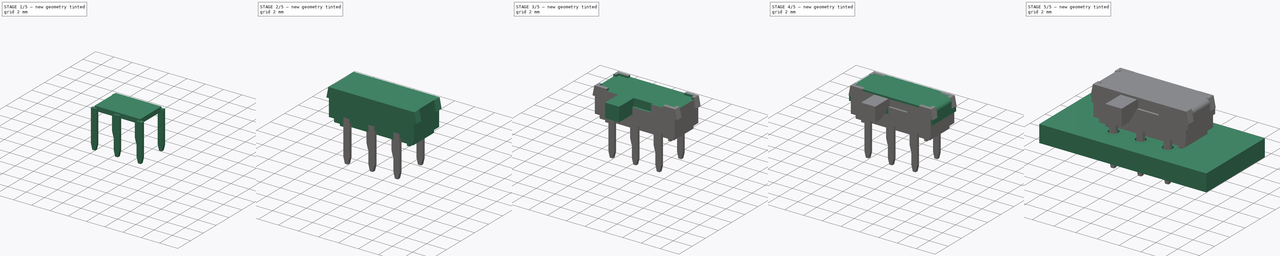
[diagram: build sequence overview — one tinted view per stage of 5, left to right]
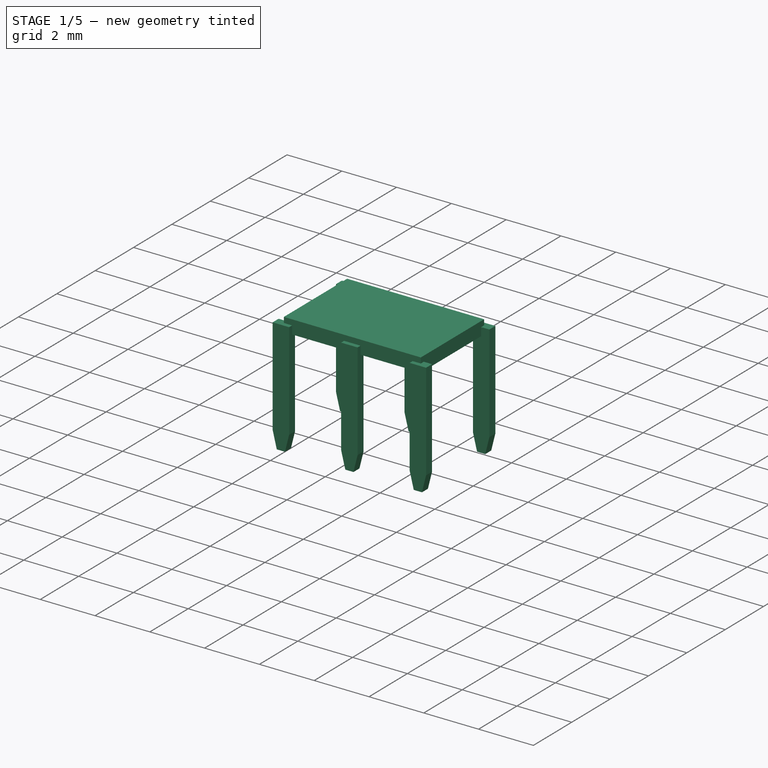
[diagram: stage 1 of 5 — iso view after this stage's code; geometry added in this stage tinted green]
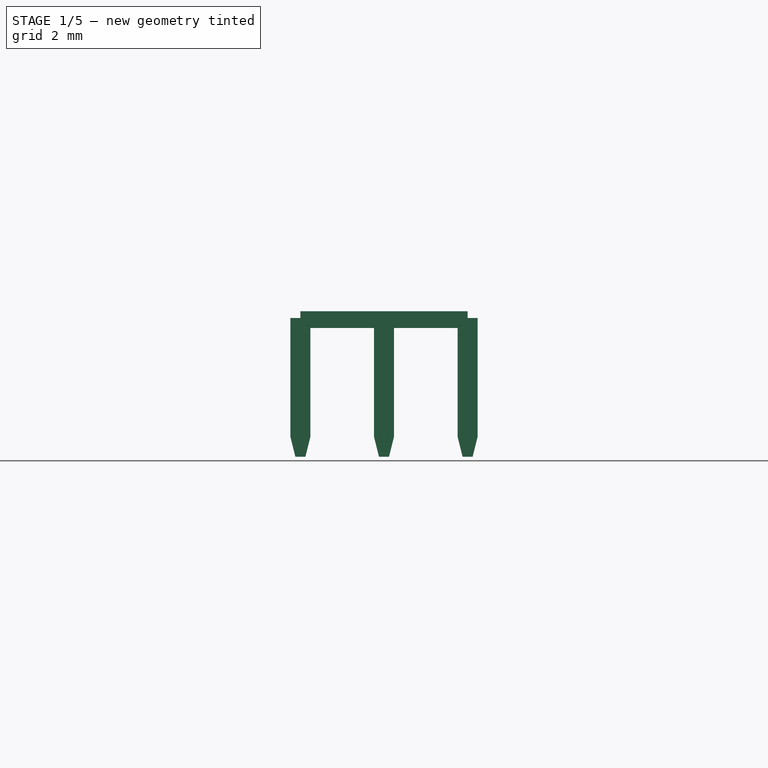
[diagram: stage 1 of 5 — front view after this stage's code; geometry added in this stage tinted green]
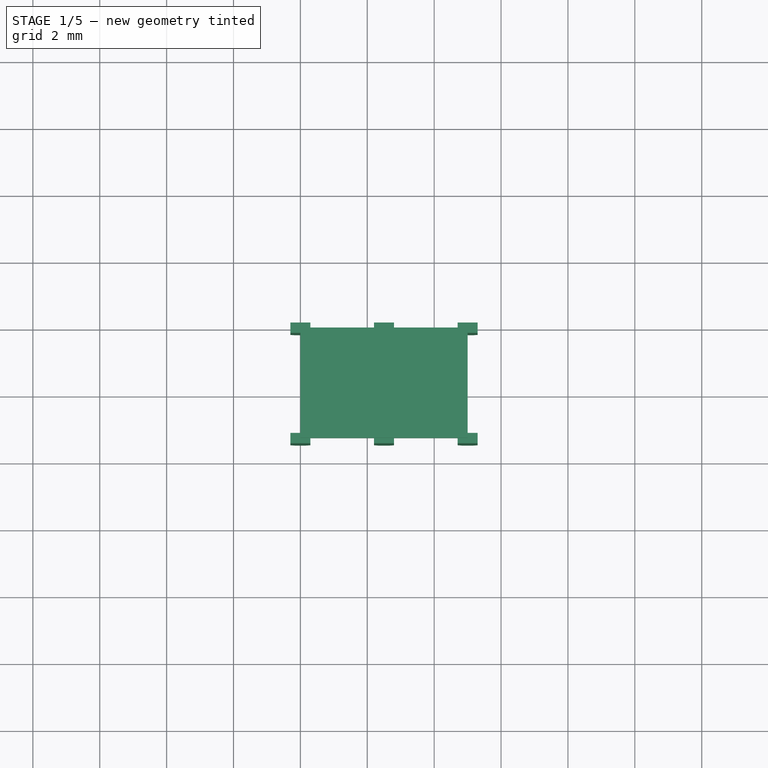
[diagram: stage 1 of 5 — top view after this stage's code; geometry added in this stage tinted green]
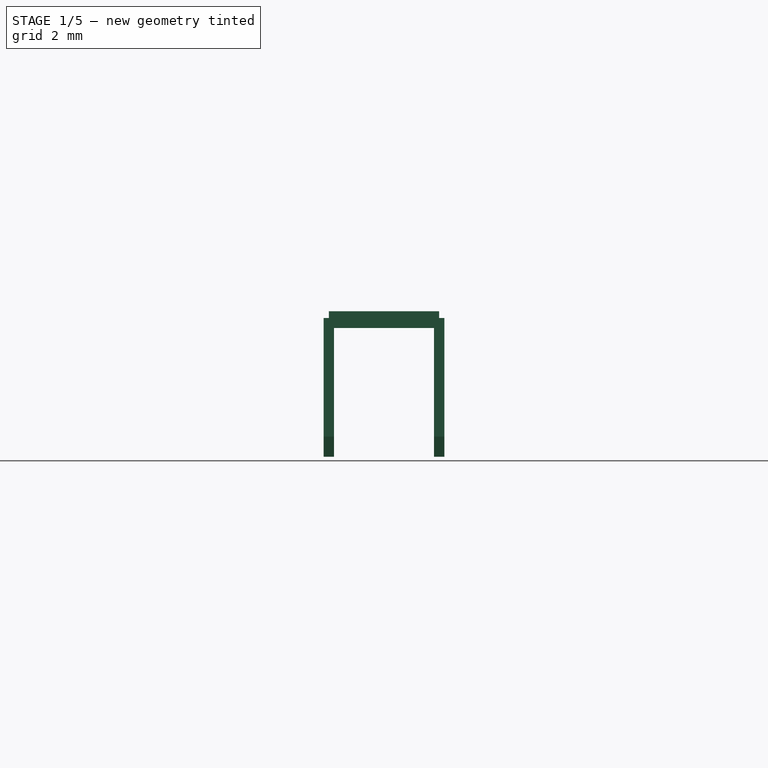
[diagram: stage 1 of 5 — right view after this stage's code; geometry added in this stage tinted green]
FCSTD DOCUMENT  (FreeCAD 0.17R10432 (Git))
Label: SW_CuK_JS202011AQN_DPDT_Angled
License: All rights reserved
LicenseURL: http://en.wikipedia.org/wiki/All_rights_reserved
objects: Sketcher::SketchObject×12, PartDesign::Pad×8, Part::FeaturePython×5, PartDesign::Pocket×4, PartDesign::Plane×3, PartDesign::Body×3, PartDesign::LinearPattern×2, App::DocumentObjectGroup×1, PartDesign::MultiTransform×1, Part::MultiFuse×1
note: 51 computed .brp shape members not serialized (recipe doc carries the construction recipe); baked Part::Feature solids carry a one-line shape summary decoded from their .brp

FEATURE [PartDesign::Body] Pocket001Body  label="MainBody"
  BaseFeature = -> DatumPlane
  Group = -> [Sketch,Pad,Sketch001,Pad001,Sketch002,Pad002,Sketch003,Pocket,Sketch004,Pocket001,Sketch014,Pocket002,Sketch015,Pad008,Sketch016,Pocket003]
  Origin = -> Pocket001BodyOrigin
  Tip = -> Pocket003
FEATURE [PartDesign::Plane] DatumPlane002
  MapMode = 5
  Placement = pos=(0,0,0.85) rot=(0,0,1;0rad)
  Support = -> [XY_Plane]
  superPlacement = pos=(0,0,0.85) rot=(0,0,1;0rad)
FEATURE [Sketcher::SketchObject] Sketch017
  MapMode = 5
  Placement = pos=(0,0,0.85) rot=(0,0,1;0rad)
  Support = -> [DatumPlane002]
  sketch-geometry (4):
    g0: LineSegment StartX=0 StartY=0 StartZ=0 EndX=5 EndY=0 EndZ=0
    g1: LineSegment StartX=5 StartY=0 StartZ=0 EndX=5 EndY=-3.3 EndZ=0
    g2: LineSegment StartX=5 StartY=-3.3 StartZ=0 EndX=0 EndY=-3.3 EndZ=0
    g3: LineSegment StartX=0 StartY=-3.3 StartZ=0 EndX=0 EndY=0 EndZ=0
  constraints (11):
    c: Coincident(g0,g1)
    c: Coincident(g1,g2)
    c: Coincident(g2,g3)
    c: Coincident(g3,g0)
    c: Horizontal(g0)
    c: Horizontal(g2)
    c: Vertical(g1)
    c: Vertical(g3)
    c: Coincident(g0,g-1)
    c: DistanceY(g3,g3) = 3.3
    c: DistanceX(g0,g0) = 5
FEATURE [PartDesign::Pad] Pad009
  Length = 0.5
  Length2 = 100
  Placement = pos=(0,0,0.85) rot=(0,0,1;0rad)
  Profile = -> Sketch017
  Type = 0
FEATURE [Sketcher::SketchObject] Sketch018
  MapMode = 5
  Placement = pos=(0,0,0.85) rot=(0,0.707107,0.707107;3.14159rad)
  Support = -> [Pad009]
  sketch-geometry (6):
    g0: LineSegment StartX=-0.3 StartY=0.3 StartZ=0 EndX=-0.3 EndY=-3.25 EndZ=0
    g1: LineSegment StartX=-0.3 StartY=-3.25 StartZ=0 EndX=-0.15 EndY=-3.85 EndZ=0
    g2: LineSegment StartX=-0.15 StartY=-3.85 StartZ=0 EndX=0.15 EndY=-3.85 EndZ=0
    g3: LineSegment StartX=0.15 StartY=-3.85 StartZ=0 EndX=0.3 EndY=-3.25 EndZ=0
    g4: LineSegment StartX=0.3 StartY=-3.25 StartZ=0 EndX=0.3 EndY=0.3 EndZ=0
    g5: LineSegment StartX=0.3 StartY=0.3 StartZ=0 EndX=-0.3 EndY=0.3 EndZ=0
  constraints (17):
    c: Vertical(g0)
    c: Coincident(g0,g1)
    c: Coincident(g1,g2)
    c: Horizontal(g2)
    c: Coincident(g2,g3)
    c: Coincident(g3,g4)
    c: Vertical(g4)
    c: Coincident(g4,g5)
    c: Coincident(g5,g0)
    c: Horizontal(g5)
    c: Symmetric(g0,g3,g-2)
    c: Symmetric(g2,g1,g-2)
    c: DistanceY(g1,g-1) = 3.85
    c: DistanceX(g0,g3) = 0.6
    c: DistanceY(g3,g3) = 0.6
    c: DistanceX(g3,g3) = 0.15
    c: DistanceY(g-1,g0) = 0.3
FEATURE [PartDesign::Pad] Pad010
  BaseFeature = -> Pad009
  Length = 0.31
  Length2 = 100
  Midplane = true
  Placement = pos=(0,0,0.85) rot=(0,0,1;0rad)
  Profile = -> Sketch018
  Type = 0
FEATURE [PartDesign::LinearPattern] LinearPattern
  BaseFeature = -> Pad010
  Direction = -> Sketch018 [H_Axis]
  Length = 5
  Occurrences = 3
  Placement = pos=(0,0,0.85) rot=(0,0,1;0rad)
  Reversed = true
FEATURE [PartDesign::LinearPattern] LinearPattern001
  Direction = -> Sketch018 [N_Axis]
  Length = 3.3
  Occurrences = 2
  Placement = pos=(0,0,0.85) rot=(0,0,1;0rad)
  Reversed = true
FEATURE [PartDesign::MultiTransform] MultiTransform
  BaseFeature = -> Pad010
  Originals = -> [Pad010]
  Placement = pos=(0,0,0.85) rot=(0,0,1;0rad)
  Transformations = -> [LinearPattern,LinearPattern001]
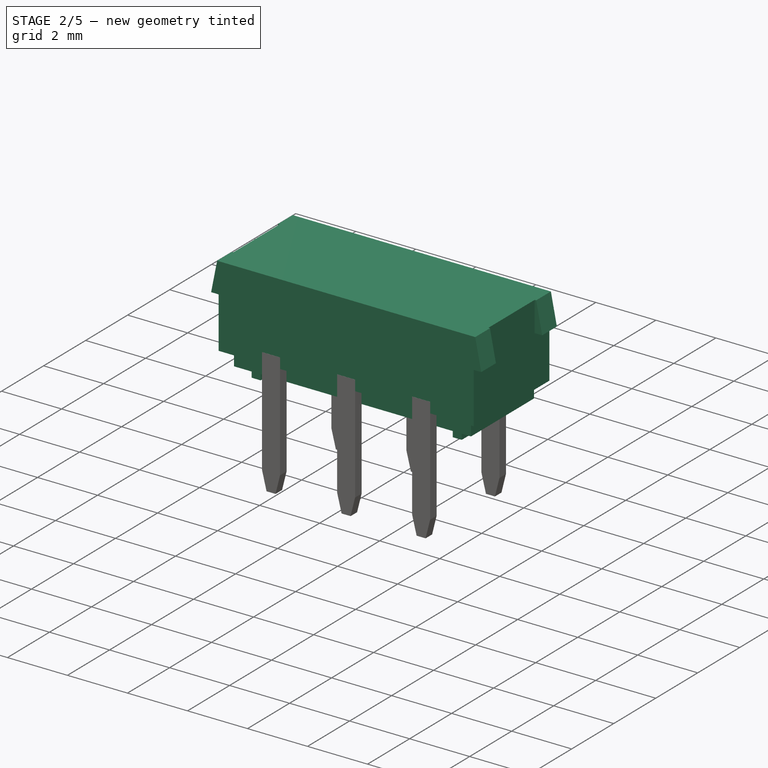
[diagram: stage 2 of 5 — iso view after this stage's code; geometry added in this stage tinted green]
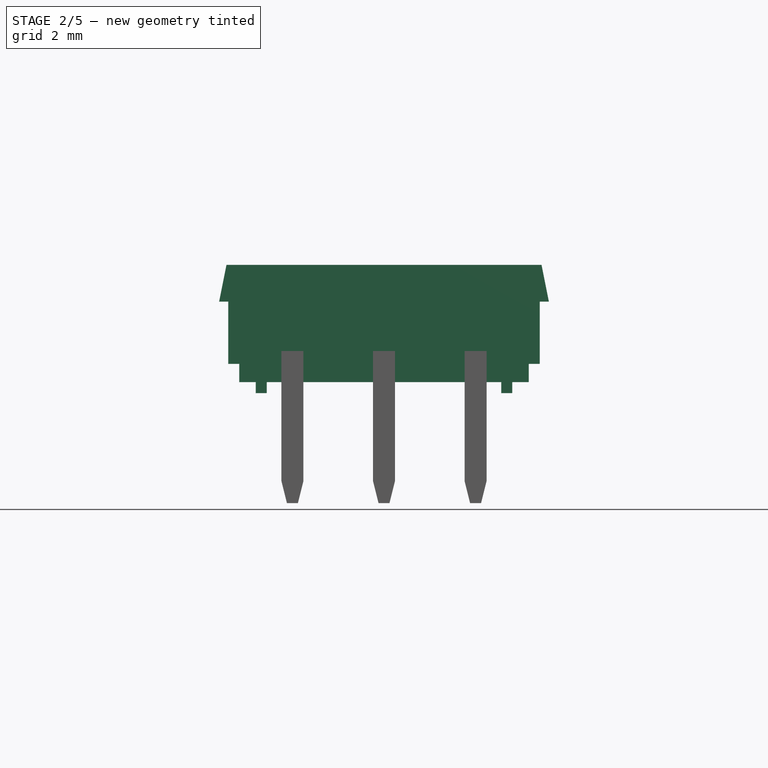
[diagram: stage 2 of 5 — front view after this stage's code; geometry added in this stage tinted green]
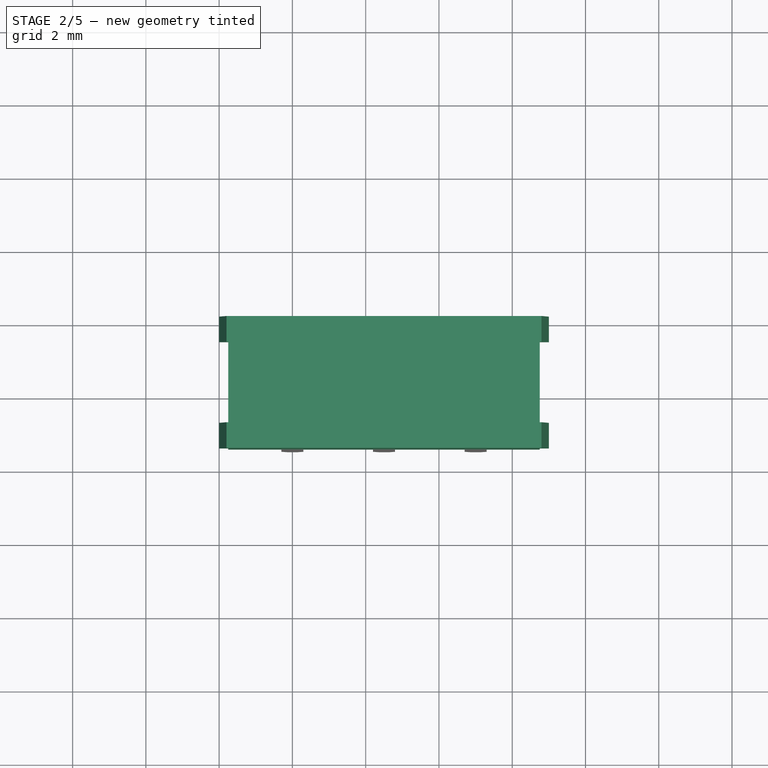
[diagram: stage 2 of 5 — top view after this stage's code; geometry added in this stage tinted green]
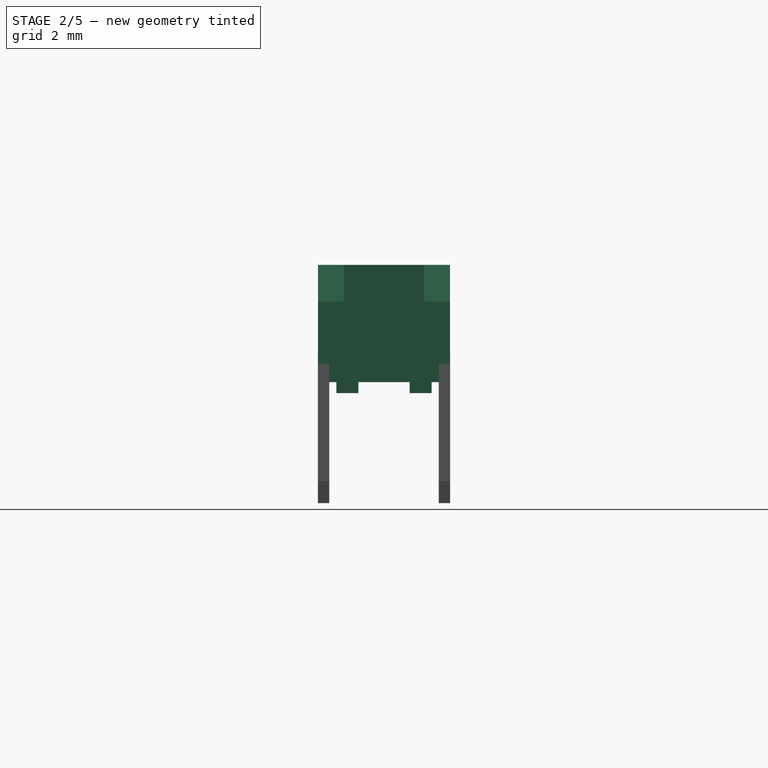
[diagram: stage 2 of 5 — right view after this stage's code; geometry added in this stage tinted green]
FEATURE [PartDesign::Plane] DatumPlane
  MapMode = 5
  Placement = pos=(0,0.15,0) rot=(1,0,0;1.5708rad)
  superPlacement = pos=(0,0,-0.15) rot=(0,0,1;0rad)
  expr: superPlacement.Base.z = -0.29999999999999999 / 2
FEATURE [Sketcher::SketchObject] Sketch
  MapMode = 5
  Placement = pos=(0,0.15,0) rot=(1,0,0;1.5708rad)
  Support = -> [DatumPlane]
  sketch-geometry (9):
    g0: LineSegment StartX=-1.75 StartY=0.8 StartZ=0 EndX=-1.75 EndY=2.5 EndZ=0
    g1: LineSegment StartX=-1.75 StartY=2.5 StartZ=0 EndX=-2 EndY=2.5 EndZ=0
    g2: LineSegment StartX=-2 StartY=2.5 StartZ=0 EndX=-1.8 EndY=3.5 EndZ=0
    g3: LineSegment StartX=-1.8 StartY=3.5 StartZ=0 EndX=6.8 EndY=3.5 EndZ=0
    g4: LineSegment StartX=6.8 StartY=3.5 StartZ=0 EndX=7 EndY=2.5 EndZ=0
    g5: LineSegment StartX=7 StartY=2.5 StartZ=0 EndX=6.75 EndY=2.5 EndZ=0
    g6: LineSegment StartX=6.75 StartY=2.5 StartZ=0 EndX=6.75 EndY=0.8 EndZ=0
    g7: LineSegment StartX=6.75 StartY=0.8 StartZ=0 EndX=-1.75 EndY=0.8 EndZ=0
    g8: LineSegment [constr] StartX=2.5 StartY=3.5 StartZ=0 EndX=2.5 EndY=0 EndZ=0
  constraints (26):
    c: Vertical(g0)
    c: Coincident(g0,g1)
    c: Horizontal(g1)
    c: Coincident(g1,g2)
    c: Coincident(g2,g3)
    c: Horizontal(g3)
    c: Coincident(g3,g4)
    c: Coincident(g4,g5)
    c: Horizontal(g5)
    c: Coincident(g5,g6)
    c: Vertical(g6)
    c: Coincident(g7,g0)
    c: Horizontal(g7)
    c: PointOnObject(g8,g3)
    c: Symmetric(g3,g2,g8)
    c: Symmetric(g4,g1,g8)
    c: Symmetric(g0,g6,g8)
    c: DistanceX(g-1,g8) = 2.5
    c: DistanceY(g4,g3) = 1
    c: DistanceX(g3,g4) = 0.2
    c: DistanceX(g1,g4) = 9
    c: DistanceX(g0,g6) = 8.5
    c: DistanceY(g-1,g2) = 3.5
    c: DistanceY(g-1,g0) = 0.8
    c: Coincident(g7,g6)
    c: PointOnObject(g8,g-1)
FEATURE [PartDesign::Pad] Pad
  BaseFeature = -> DatumPlane
  Length = 3.6
  Length2 = 100
  Placement = pos=(0,0.15,0) rot=(1,0,0;1.5708rad)
  Profile = -> Sketch
  Type = 0
  expr: Length = 3.2999999999999998 + 0.29999999999999999
FEATURE [Sketcher::SketchObject] Sketch001
  ExternalGeometry = -> [Pad]
  MapMode = 5
  Placement = pos=(0,0.15,0.8) rot=(1,0,0;3.14159rad)
  Support = -> [Pad]
  sketch-geometry (4):
    g0: LineSegment StartX=-1.45 StartY=3.3 StartZ=0 EndX=6.45 EndY=3.3 EndZ=0
    g1: LineSegment StartX=6.45 StartY=3.3 StartZ=0 EndX=6.45 EndY=0.3 EndZ=0
    g2: LineSegment StartX=6.45 StartY=0.3 StartZ=0 EndX=-1.45 EndY=0.3 EndZ=0
    g3: LineSegment StartX=-1.45 StartY=0.3 StartZ=0 EndX=-1.45 EndY=3.3 EndZ=0
  constraints (12):
    c: Coincident(g0,g1)
    c: Coincident(g1,g2)
    c: Coincident(g2,g3)
    c: Coincident(g3,g0)
    c: Horizontal(g0)
    c: Horizontal(g2)
    c: Vertical(g1)
    c: Vertical(g3)
    c: DistanceX(g-3,g0) = 0.3
    c: DistanceY(g0,g-3) = 0.3
    c: DistanceX(g1,g-4) = 0.3
    c: DistanceY(g-4,g1) = 0.3
FEATURE [PartDesign::Pad] Pad001
  BaseFeature = -> Pad
  Length = 0.5
  Length2 = 100
  Placement = pos=(0,0.15,0) rot=(1,0,0;1.5708rad)
  Profile = -> Sketch001
  Type = 0
FEATURE [Sketcher::SketchObject] Sketch002
  ExternalGeometry = -> [Pad001]
  MapMode = 5
  Placement = pos=(0,0.15,0.3) rot=(1,0,0;3.14159rad)
  Support = -> [Pad001]
  sketch-geometry (18):
    g0: LineSegment StartX=-1 StartY=3.1 StartZ=0 EndX=-0.7 EndY=3.1 EndZ=0
    g1: LineSegment StartX=-0.7 StartY=3.1 StartZ=0 EndX=-0.7 EndY=2.5 EndZ=0
    g2: LineSegment StartX=-0.7 StartY=2.5 StartZ=0 EndX=-1 EndY=2.5 EndZ=0
    g3: LineSegment StartX=-1 StartY=2.5 StartZ=0 EndX=-1 EndY=3.1 EndZ=0
    g4: LineSegment StartX=-1 StartY=1.1 StartZ=0 EndX=-0.7 EndY=1.1 EndZ=0
    g5: LineSegment StartX=-0.7 StartY=1.1 StartZ=0 EndX=-0.7 EndY=0.5 EndZ=0
    g6: LineSegment StartX=-0.7 StartY=0.5 StartZ=0 EndX=-1 EndY=0.5 EndZ=0
    g7: LineSegment StartX=-1 StartY=0.5 StartZ=0 EndX=-1 EndY=1.1 EndZ=0
    g8: LineSegment StartX=5.7 StartY=3.1 StartZ=0 EndX=6 EndY=3.1 EndZ=0
    g9: LineSegment StartX=6 StartY=3.1 StartZ=0 EndX=6 EndY=2.5 EndZ=0
    g10: LineSegment StartX=6 StartY=2.5 StartZ=0 EndX=5.7 EndY=2.5 EndZ=0
    g11: LineSegment StartX=5.7 StartY=2.5 StartZ=0 EndX=5.7 EndY=3.1 EndZ=0
    g12: LineSegment StartX=5.7 StartY=1.1 StartZ=0 EndX=6 EndY=1.1 EndZ=0
    g13: LineSegment StartX=6 StartY=1.1 StartZ=0 EndX=6 EndY=0.5 EndZ=0
    g14: LineSegment StartX=6 StartY=0.5 StartZ=0 EndX=5.7 EndY=0.5 EndZ=0
    g15: LineSegment StartX=5.7 StartY=0.5 StartZ=0 EndX=5.7 EndY=1.1 EndZ=0
    g16: LineSegment [constr] StartX=2.5 StartY=3.3 StartZ=0 EndX=2.5 EndY=0.3 EndZ=0
    g17: LineSegment [constr] StartX=-1 StartY=1.8 StartZ=0 EndX=6 EndY=1.8 EndZ=0
  constraints (50):
    c: Coincident(g0,g1)
    c: Coincident(g1,g2)
    c: Coincident(g2,g3)
    c: Coincident(g3,g0)
    c: Horizontal(g0)
    c: Horizontal(g2)
    c: Vertical(g1)
    c: Vertical(g3)
    c: Coincident(g4,g5)
    c: Coincident(g5,g6)
    c: Coincident(g6,g7)
    c: Coincident(g7,g4)
    c: Horizontal(g4)
    c: Horizontal(g6)
    c: Vertical(g5)
    c: Vertical(g7)
    c: Coincident(g8,g9)
    c: Coincident(g9,g10)
    c: Coincident(g10,g11)
    c: Coincident(g11,g8)
    c: Horizontal(g8)
    c: Horizontal(g10)
    c: Vertical(g9)
    c: Vertical(g11)
    c: Coincident(g12,g13)
    c: Coincident(g13,g14)
    c: Coincident(g14,g15)
    c: Coincident(g15,g12)
    c: Horizontal(g12)
    c: Horizontal(g14)
    c: Vertical(g13)
    c: Vertical(g15)
    c: PointOnObject(g16,g-3)
    c: PointOnObject(g16,g-4)
    c: Vertical(g16)
    c: Horizontal(g17)
    c: Symmetric(g0,g8,g16)
    c: Symmetric(g9,g2,g16)
    c: Symmetric(g12,g4,g16)
    c: Symmetric(g5,g14,g16)
    c: Symmetric(g14,g8,g17)
    c: Symmetric(g9,g12,g17)
    c: Symmetric(g-3,g-4,g17)
    c: PointOnObject(g17,g9)
    c: Symmetric(g-3,g-3,g16)
    c: PointOnObject(g17,g3)
    c: DistanceX(g-3,g0) = 0.2
    c: DistanceY(g0,g-3) = 0.2
    c: DistanceX(g0,g0) = 0.3
    c: DistanceY(g3,g3) = 0.6
FEATURE [PartDesign::Pad] Pad002
  BaseFeature = -> Pad001
  Length = 0.3
  Length2 = 100
  Placement = pos=(0,0.15,0) rot=(1,0,0;1.5708rad)
  Profile = -> Sketch002
  Type = 0
FEATURE [Sketcher::SketchObject] Sketch003
  ExternalGeometry = -> [Pad002]
  MapMode = 5
  Placement = pos=(0,0.15,3.5) rot=(0,0,1;3.14159rad)
  Support = -> [Pad002]
  sketch-geometry (9):
    g0: LineSegment StartX=1.75 StartY=2.9 StartZ=0 EndX=2 EndY=2.9 EndZ=0
    g1: LineSegment StartX=2 StartY=2.9 StartZ=0 EndX=2 EndY=0.7 EndZ=0
    g2: LineSegment StartX=2 StartY=0.7 StartZ=0 EndX=1.75 EndY=0.7 EndZ=0
    g3: LineSegment StartX=1.75 StartY=0.7 StartZ=0 EndX=1.75 EndY=2.9 EndZ=0
    g4: LineSegment StartX=-7 StartY=2.9 StartZ=0 EndX=-6.75 EndY=2.9 EndZ=0
    g5: LineSegment StartX=-6.75 StartY=2.9 StartZ=0 EndX=-6.75 EndY=0.7 EndZ=0
    g6: LineSegment StartX=-6.75 StartY=0.7 StartZ=0 EndX=-7 EndY=0.7 EndZ=0
    g7: LineSegment StartX=-7 StartY=0.7 StartZ=0 EndX=-7 EndY=2.9 EndZ=0
    g8: LineSegment [constr] StartX=-7 StartY=1.8 StartZ=0 EndX=2 EndY=1.8 EndZ=0
  constraints (26):
    c: Coincident(g0,g1)
    c: Coincident(g1,g2)
    c: Coincident(g2,g3)
    c: Coincident(g3,g0)
    c: Horizontal(g0)
    c: Horizontal(g2)
    c: Vertical(g1)
    c: Vertical(g3)
    c: PointOnObject(g1,g-8)
    c: Coincident(g4,g5)
    c: Coincident(g5,g6)
    c: Coincident(g6,g7)
    c: Coincident(g7,g4)
    c: Horizontal(g4)
    c: Horizontal(g6)
    c: Vertical(g5)
    c: Vertical(g7)
    c: PointOnObject(g4,g-7)
    c: PointOnObject(g8,g-7)
    c: PointOnObject(g8,g-8)
    c: Symmetric(g-8,g-8,g8)
    c: Symmetric(g1,g0,g8)
    c: DistanceY(g0,g-8) = 0.7
    c: Symmetric(g4,g5,g8)
    c: PointOnObject(g5,g-6)
    c: PointOnObject(g2,g-5)
FEATURE [PartDesign::Pocket] Pocket
  BaseFeature = -> Pad002
  Length = 5
  Placement = pos=(0,0.15,0) rot=(1,0,0;1.5708rad)
  Profile = -> Sketch003
  Type = 1
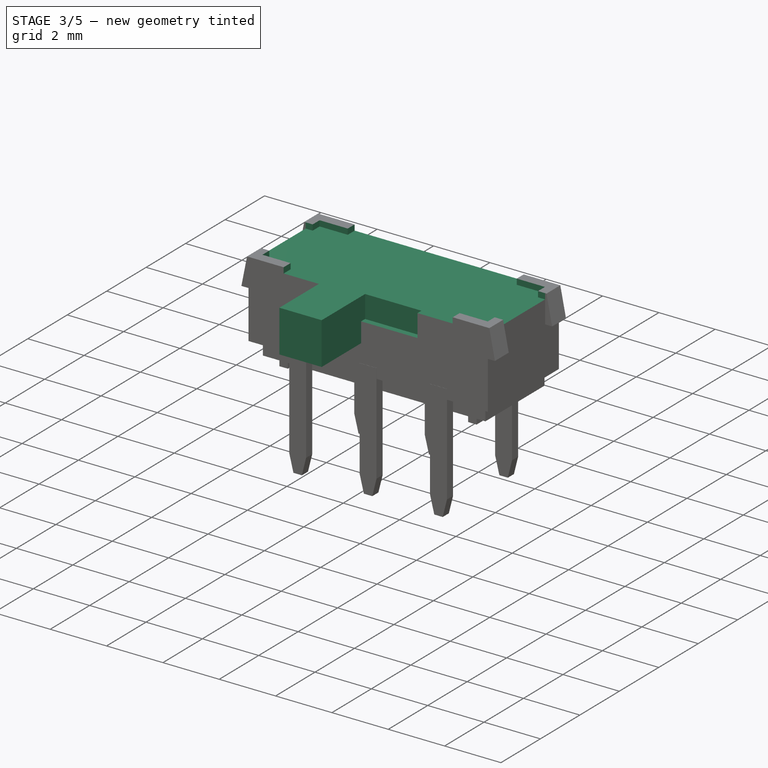
[diagram: stage 3 of 5 — iso view after this stage's code; geometry added in this stage tinted green]
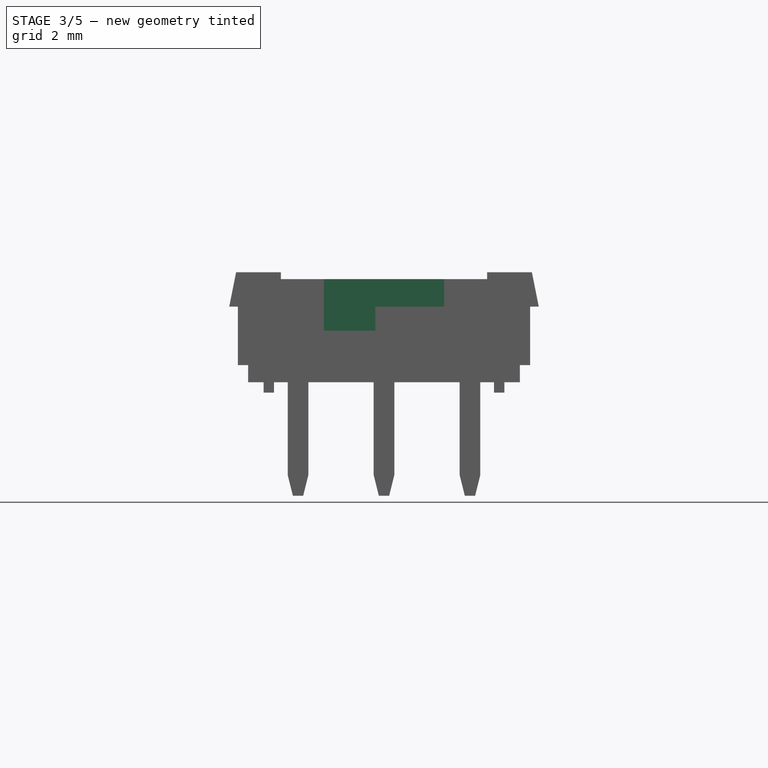
[diagram: stage 3 of 5 — front view after this stage's code; geometry added in this stage tinted green]
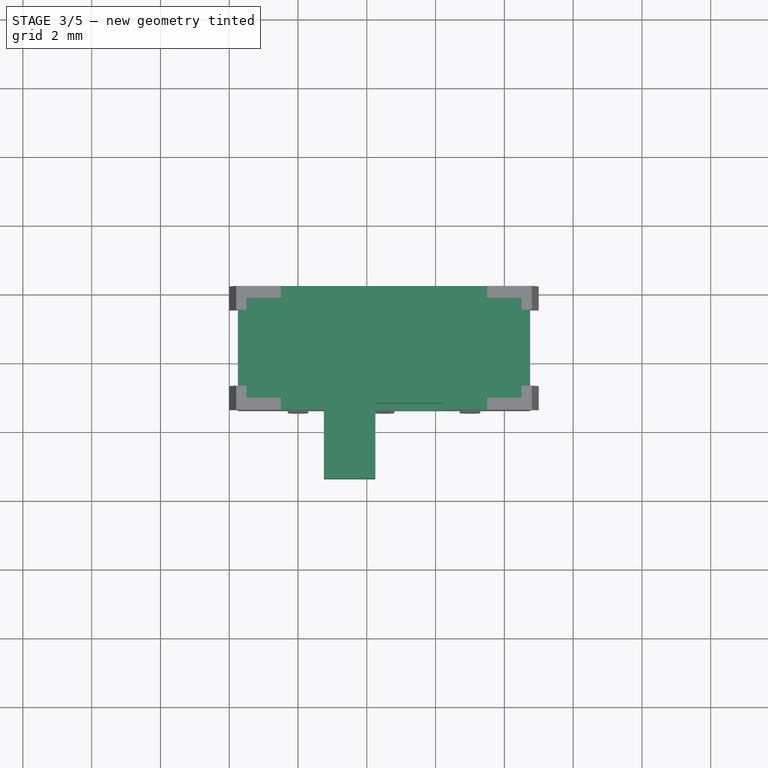
[diagram: stage 3 of 5 — top view after this stage's code; geometry added in this stage tinted green]
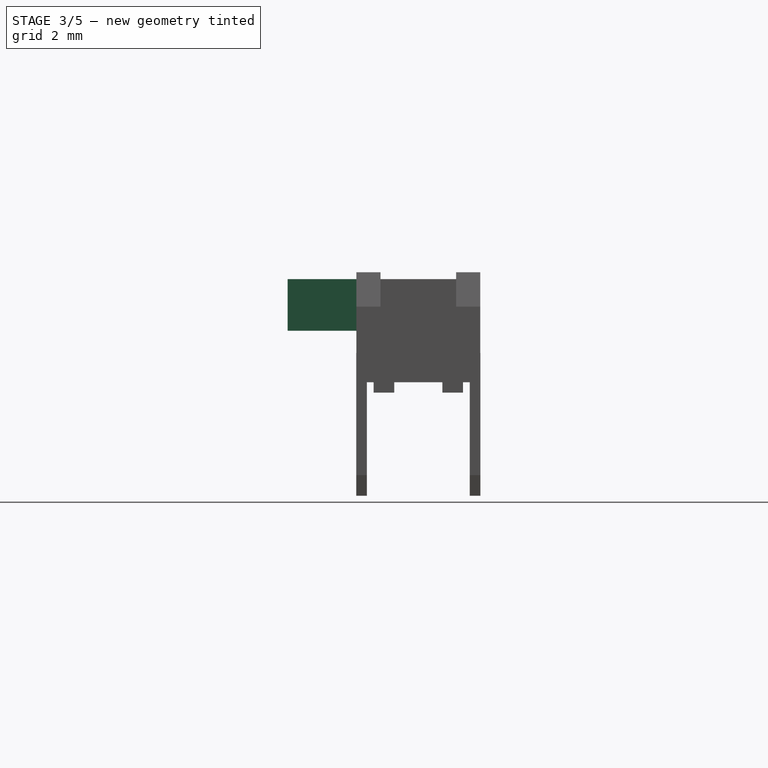
[diagram: stage 3 of 5 — right view after this stage's code; geometry added in this stage tinted green]
FEATURE [Sketcher::SketchObject] Sketch004
  ExternalGeometry = -> [Pocket]
  MapMode = 5
  Placement = pos=(0,0.15,3.5) rot=(0,0,1;3.14159rad)
  Support = -> [Pocket]
  sketch-geometry (22):
    g0: LineSegment [constr] StartX=-6.75 StartY=1.8 StartZ=0 EndX=1.75 EndY=1.8 EndZ=0
    g1: LineSegment [constr] StartX=-2.5 StartY=3.25 StartZ=0 EndX=-2.5 EndY=0.35 EndZ=0
    g2: LineSegment StartX=-5.5 StartY=3.6 StartZ=0 EndX=-5.5 EndY=3.25 EndZ=0
    g3: LineSegment StartX=-5.5 StartY=3.25 StartZ=0 EndX=-6.5 EndY=3.25 EndZ=0
    g4: LineSegment StartX=-6.5 StartY=0.35 StartZ=0 EndX=-5.5 EndY=0.35 EndZ=0
    g5: LineSegment StartX=-5.5 StartY=0.35 StartZ=0 EndX=-5.5 EndY=0 EndZ=0
    g6: LineSegment StartX=-5.5 StartY=0 StartZ=0 EndX=0.5 EndY=0 EndZ=0
    g7: LineSegment StartX=0.5 StartY=0 StartZ=0 EndX=0.5 EndY=0.35 EndZ=0
    g8: LineSegment StartX=0.5 StartY=0.35 StartZ=0 EndX=1.5 EndY=0.35 EndZ=0
    g9: LineSegment StartX=1.5 StartY=3.25 StartZ=0 EndX=0.5 EndY=3.25 EndZ=0
    g10: LineSegment StartX=0.5 StartY=3.25 StartZ=0 EndX=0.5 EndY=3.6 EndZ=0
    g11: LineSegment StartX=0.5 StartY=3.6 StartZ=0 EndX=-5.5 EndY=3.6 EndZ=0
    g12: LineSegment StartX=-6.5 StartY=3.25 StartZ=0 EndX=-6.5 EndY=2.9 EndZ=0
    g13: LineSegment StartX=-6.5 StartY=2.9 StartZ=0 EndX=-6.75 EndY=2.9 EndZ=0
    g14: LineSegment StartX=-6.75 StartY=2.9 StartZ=0 EndX=-6.75 EndY=0.7 EndZ=0
    g15: LineSegment StartX=-6.75 StartY=0.7 StartZ=0 EndX=-6.5 EndY=0.7 EndZ=0
    g16: LineSegment StartX=-6.5 StartY=0.7 StartZ=0 EndX=-6.5 EndY=0.35 EndZ=0
    g17: LineSegment StartX=1.5 StartY=3.25 StartZ=0 EndX=1.5 EndY=2.9 EndZ=0
    g18: LineSegment StartX=1.5 StartY=2.9 StartZ=0 EndX=1.75 EndY=2.9 EndZ=0
    g19: LineSegment StartX=1.75 StartY=2.9 StartZ=0 EndX=1.75 EndY=0.7 EndZ=0
    g20: LineSegment StartX=1.75 StartY=0.7 StartZ=0 EndX=1.5 EndY=0.7 EndZ=0
    g21: LineSegment StartX=1.5 StartY=0.7 StartZ=0 EndX=1.5 EndY=0.35 EndZ=0
  constraints (60):
    c: Horizontal(g0)
    c: Vertical(g2)
    c: Coincident(g2,g3)
    c: Horizontal(g3)
    c: Horizontal(g4)
    c: Coincident(g4,g5)
    c: Vertical(g5)
    c: Coincident(g5,g6)
    c: Coincident(g6,g7)
    c: Vertical(g7)
    c: Coincident(g7,g8)
    c: Horizontal(g8)
    c: Horizontal(g9)
    c: Coincident(g9,g10)
    c: Coincident(g10,g11)
    c: Vertical(g10)
    c: Symmetric(g2,g4,g0)
    c: Symmetric(g9,g2,g1)
    c: Symmetric(g4,g7,g1)
    c: DistanceY(g5,g5) = 0.35
    c: DistanceX(g4,g4) = 1
    c: Coincident(g11,g2)
    c: PointOnObject(g6,g-7)
    c: PointOnObject(g5,g-7)
    c: PointOnObject(g2,g-5)
    c: PointOnObject(g10,g-5)
    c: PointOnObject(g1,g9)
    c: PointOnObject(g1,g8)
    c: Symmetric(g-5,g-5,g1)
    c: Symmetric(g-7,g-5,g0)
    c: Coincident(g3,g12)
    c: Vertical(g12)
    c: Coincident(g12,g13)
    c: Coincident(g13,g-4)
    c: Coincident(g13,g14)
    c: Coincident(g14,g-4)
    c: Coincident(g14,g15)
    c: Horizontal(g15)
    c: Coincident(g15,g16)
    c: Coincident(g16,g4)
    c: Vertical(g16)
    c: Horizontal(g13)
    c: Coincident(g9,g17)
    c: Vertical(g17)
    c: Coincident(g17,g18)
    c: Coincident(g18,g-6)
    c: Horizontal(g18)
    c: Coincident(g18,g19)
    c: Coincident(g19,g-6)
    c: Coincident(g19,g20)
    c: Horizontal(g20)
    c: Coincident(g20,g21)
    c: Coincident(g21,g8)
    c: Vertical(g21)
    c: DistanceX(g13,g13) = 0.25
    c: Symmetric(g17,g12,g1)
    c: Symmetric(g20,g15,g1)
    c: PointOnObject(g12,g16)
    c: PointOnObject(g0,g-4)
    c: PointOnObject(g0,g-6)
FEATURE [PartDesign::Pocket] Pocket001
  BaseFeature = -> Pocket
  Length = 0.2
  Placement = pos=(0,0.15,0) rot=(1,0,0;1.5708rad)
  Profile = -> Sketch004
  Type = 0
FEATURE [App::DocumentObjectGroup] SW_CuK_JS202011AQN_DPDT_Angled_fp
  Group = -> [Filk_lines,TopPads,BotPads,THPs,newPCB]
FEATURE [PartDesign::Body] Pad005Body  label="TopMetal"
  BaseFeature = -> DatumPlane001
  Group = -> [Sketch007,Pad004,Sketch008,Pad005]
  Origin = -> Pad005BodyOrigin
  Tip = -> Pad005
FEATURE [Sketcher::SketchObject] Sketch014
  ExternalGeometry = -> [Pocket001]
  MapMode = 5
  Placement = pos=(0,-3.45,0) rot=(1,0,0;1.5708rad)
  Support = -> [Pocket001]
  expr: Constraints[14] = 2 + 1.5
  sketch-geometry (5):
    g0: LineSegment StartX=0.75 StartY=3.3 StartZ=0 EndX=4.25 EndY=3.3 EndZ=0
    g1: LineSegment StartX=4.25 StartY=3.3 StartZ=0 EndX=4.25 EndY=2.5 EndZ=0
    g2: LineSegment StartX=4.25 StartY=2.5 StartZ=0 EndX=0.75 EndY=2.5 EndZ=0
    g3: LineSegment StartX=0.75 StartY=2.5 StartZ=0 EndX=0.75 EndY=3.3 EndZ=0
    g4: LineSegment [constr] StartX=2.5 StartY=3.3 StartZ=0 EndX=2.5 EndY=2.5 EndZ=0
  constraints (15):
    c: Coincident(g0,g1)
    c: Coincident(g1,g2)
    c: Coincident(g2,g3)
    c: Coincident(g3,g0)
    c: Horizontal(g0)
    c: Horizontal(g2)
    c: Vertical(g1)
    c: Vertical(g3)
    c: PointOnObject(g0,g-3)
    c: PointOnObject(g4,g-3)
    c: PointOnObject(g4,g2)
    c: Symmetric(g-5,g-4,g4)
    c: Symmetric(g1,g2,g4)
    c: PointOnObject(g-4,g2)
    c: DistanceX(g2,g2) = 3.5
FEATURE [PartDesign::Pocket] Pocket002
  BaseFeature = -> Pocket001
  Length = 0.2
  Placement = pos=(0,0.15,0) rot=(1,0,0;1.5708rad)
  Profile = -> Sketch014
  Type = 0
FEATURE [Sketcher::SketchObject] Sketch015
  ExternalGeometry = -> [Pocket002]
  MapMode = 5
  Placement = pos=(0,-3.25,0) rot=(1,0,0;1.5708rad)
  Support = -> [Pocket002]
  sketch-geometry (4):
    g0: LineSegment StartX=0.75 StartY=3.3 StartZ=0 EndX=2.25 EndY=3.3 EndZ=0
    g1: LineSegment StartX=2.25 StartY=3.3 StartZ=0 EndX=2.25 EndY=1.8 EndZ=0
    g2: LineSegment StartX=2.25 StartY=1.8 StartZ=0 EndX=0.75 EndY=1.8 EndZ=0
    g3: LineSegment StartX=0.75 StartY=1.8 StartZ=0 EndX=0.75 EndY=3.3 EndZ=0
  constraints (11):
    c: Coincident(g0,g1)
    c: Coincident(g1,g2)
    c: Coincident(g2,g3)
    c: Coincident(g3,g0)
    c: Horizontal(g0)
    c: Horizontal(g2)
    c: Vertical(g1)
    c: Vertical(g3)
    c: Coincident(g0,g-3)
    c: Equal(g0,g1)
    c: DistanceX(g0,g0) = 1.5
FEATURE [PartDesign::Pad] Pad008
  BaseFeature = -> Pocket002
  Length = 2.2
  Length2 = 100
  Placement = pos=(0,0.15,0) rot=(1,0,0;1.5708rad)
  Profile = -> Sketch015
  Type = 0
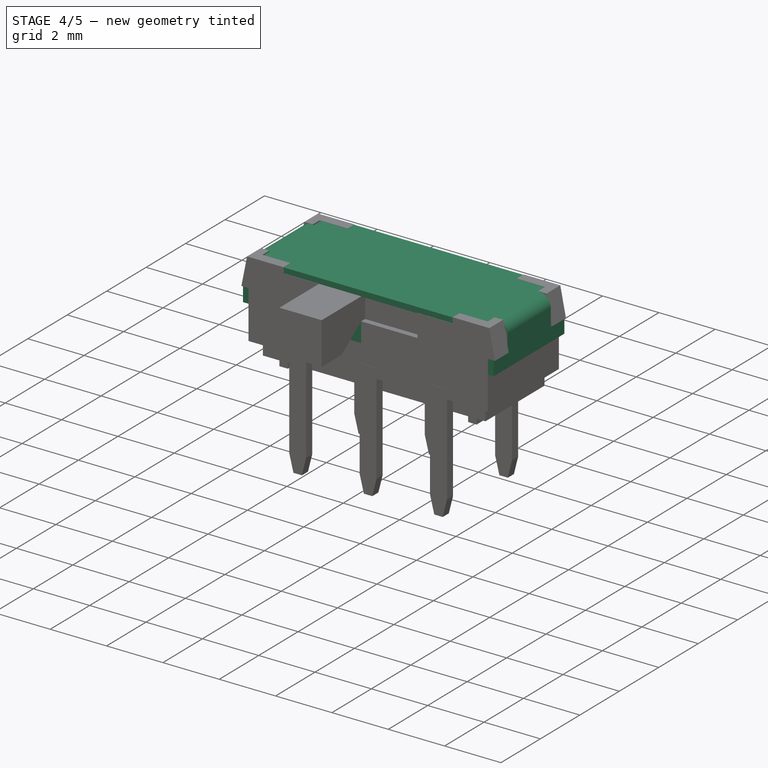
[diagram: stage 4 of 5 — iso view after this stage's code; geometry added in this stage tinted green]
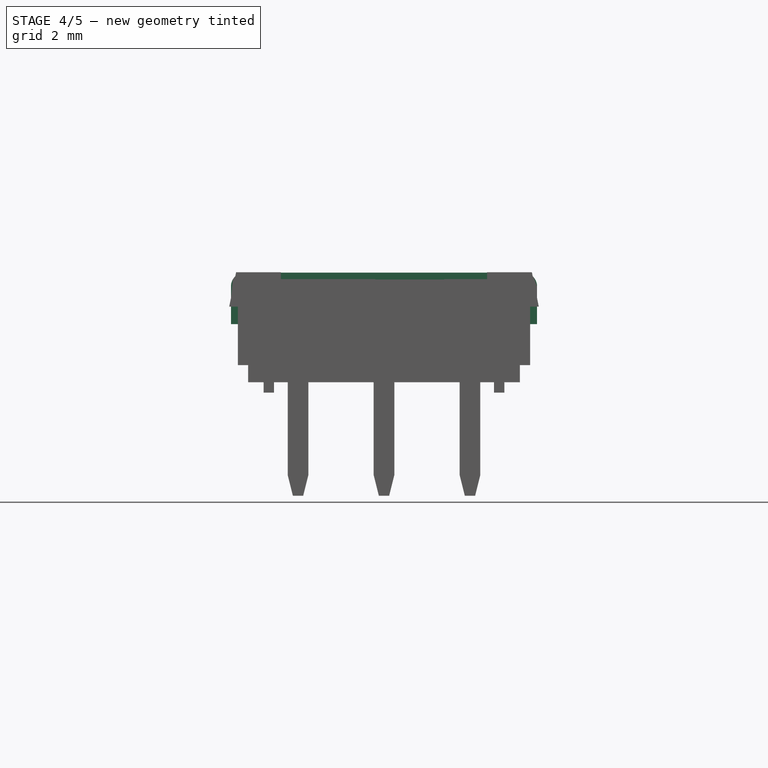
[diagram: stage 4 of 5 — front view after this stage's code; geometry added in this stage tinted green]
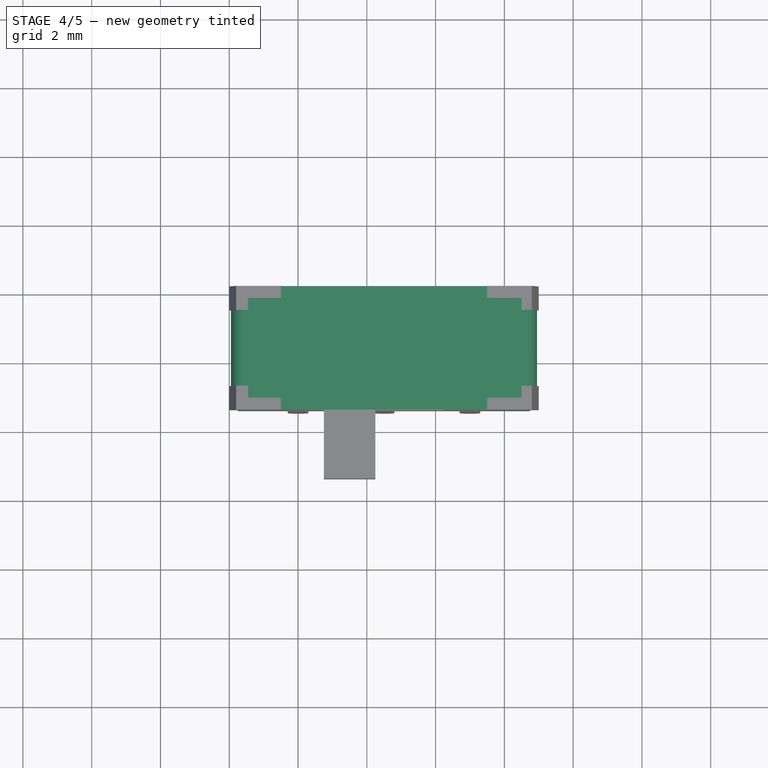
[diagram: stage 4 of 5 — top view after this stage's code; geometry added in this stage tinted green]
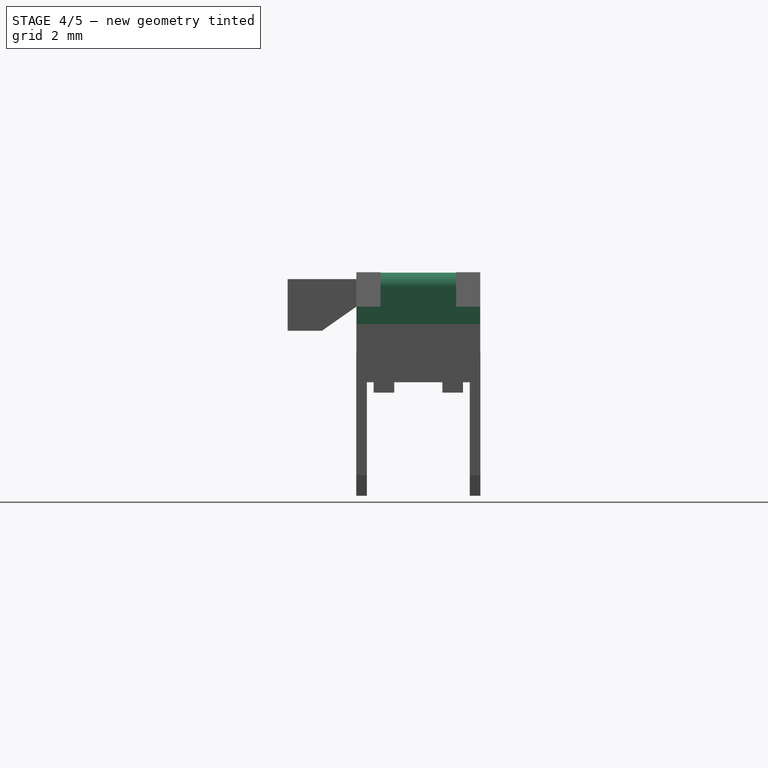
[diagram: stage 4 of 5 — right view after this stage's code; geometry added in this stage tinted green]
FEATURE [PartDesign::Plane] DatumPlane001
  MapMode = 5
  Placement = pos=(0,-0.55,0) rot=(1,0,0;1.5708rad)
  superPlacement = pos=(0,0,0.55) rot=(0,0,1;0rad)
  expr: superPlacement.Base.z = -0.29999999999999999 / 2 + 0.69999999999999996
FEATURE [Sketcher::SketchObject] Sketch007
  MapMode = 5
  Placement = pos=(0,-0.55,0) rot=(1,0,0;1.5708rad)
  Support = -> [DatumPlane001]
  sketch-geometry (13):
    g0: LineSegment StartX=-1.95 StartY=1.99 StartZ=0 EndX=-1.95 EndY=3.09 EndZ=0
    g1: LineSegment StartX=-1.55 StartY=3.49 StartZ=0 EndX=6.55 EndY=3.49 EndZ=0
    g2: LineSegment StartX=6.95 StartY=3.09 StartZ=0 EndX=6.95 EndY=1.99 EndZ=0
    g3: LineSegment StartX=6.95 StartY=1.99 StartZ=0 EndX=6.75 EndY=1.99 EndZ=0
    g4: LineSegment StartX=6.75 StartY=1.99 StartZ=0 EndX=6.75 EndY=3.09 EndZ=0
    g5: LineSegment StartX=6.55 StartY=3.29 StartZ=0 EndX=-1.55 EndY=3.29 EndZ=0
    g6: LineSegment StartX=-1.75 StartY=3.09 StartZ=0 EndX=-1.75 EndY=1.99 EndZ=0
    g7: LineSegment StartX=-1.75 StartY=1.99 StartZ=0 EndX=-1.95 EndY=1.99 EndZ=0
    g8: ArcOfCircle CenterX=-1.55 CenterY=3.09 CenterZ=0 NormalX=0 NormalY=0 NormalZ=1 Radius=0.2 StartAngle=1.5708 EndAngle=3.14159
    g9: ArcOfCircle CenterX=-1.55 CenterY=3.09 CenterZ=0 NormalX=0 NormalY=0 NormalZ=1 Radius=0.4 StartAngle=1.5708 EndAngle=3.14159
    g10: ArcOfCircle CenterX=6.55 CenterY=3.09 CenterZ=0 NormalX=0 NormalY=0 NormalZ=1 Radius=0.4 StartAngle=0 EndAngle=1.5708
    g11: ArcOfCircle CenterX=6.55 CenterY=3.09 CenterZ=0 NormalX=0 NormalY=0 NormalZ=1 Radius=0.2 StartAngle=0 EndAngle=1.5708
    g12: LineSegment [constr] StartX=2.5 StartY=3.49 StartZ=0 EndX=2.5 EndY=0 EndZ=0
  constraints (33):
    c: Vertical(g0)
    c: Horizontal(g1)
    c: Vertical(g2)
    c: Coincident(g2,g3)
    c: Horizontal(g3)
    c: Coincident(g3,g4)
    c: Horizontal(g5)
    c: Vertical(g6)
    c: Coincident(g6,g7)
    c: Coincident(g7,g0)
    c: Horizontal(g7)
    c: Tangent(g6,g8) = -1.5708
    c: Tangent(g5,g8) = -1.5708
    c: Tangent(g0,g9) = 1.5708
    c: Tangent(g1,g9) = 1.5708
    c: Tangent(g1,g10) = 1.5708
    c: Tangent(g2,g10) = 1.5708
    c: Tangent(g5,g11) = -1.5708
    c: Tangent(g4,g11) = -1.5708
    c: Vertical(g4)
    c: Coincident(g10,g11)
    c: Coincident(g8,g9)
    c: PointOnObject(g12,g1)
    c: PointOnObject(g12,g-1)
    c: Vertical(g12)
    c: DistanceX(g-1,g12) = 2.5
    c: Symmetric(g2,g0,g12)
    c: Equal(g8,g11)
    c: DistanceY(g5,g1) = 0.2
    c: DistanceY(g-1,g1) = 3.49
    c: Radius(g8) = 0.2
    c: DistanceX(g0,g2) = 8.9
    c: DistanceY(g6,g1) = 1.5
FEATURE [PartDesign::Pad] Pad004
  BaseFeature = -> DatumPlane001
  Length = 2.2
  Length2 = 100
  Placement = pos=(0,-0.55,0) rot=(1,0,0;1.5708rad)
  Profile = -> Sketch007
  Type = 0
  expr: Length = 3.2999999999999998 + 0.29999999999999999 - 2 * 0.69999999999999996
FEATURE [Sketcher::SketchObject] Sketch008
  ExternalGeometry = -> [Pad004]
  MapMode = 5
  Placement = pos=(0,-0.55,0) rot=(-1,0,0;1.5708rad)
  Support = -> [Pad004]
  sketch-geometry (12):
    g0: LineSegment StartX=-1.45 StartY=-3.29 StartZ=0 EndX=6.5 EndY=-3.29 EndZ=0
    g1: LineSegment StartX=6.5 StartY=-3.29 StartZ=0 EndX=6.5 EndY=-3.49 EndZ=0
    g2: LineSegment StartX=6.5 StartY=-3.49 StartZ=0 EndX=-1.45 EndY=-3.49 EndZ=0
    g3: LineSegment StartX=-1.45 StartY=-3.49 StartZ=0 EndX=-1.45 EndY=-3.29 EndZ=0
    g4: LineSegment StartX=6.75 StartY=-1.99 StartZ=0 EndX=6.95 EndY=-1.99 EndZ=0
    g5: LineSegment StartX=6.95 StartY=-1.99 StartZ=0 EndX=6.95 EndY=-2.54 EndZ=0
    g6: LineSegment StartX=6.95 StartY=-2.54 StartZ=0 EndX=6.75 EndY=-2.54 EndZ=0
    g7: LineSegment StartX=6.75 StartY=-2.54 StartZ=0 EndX=6.75 EndY=-1.99 EndZ=0
    g8: LineSegment StartX=-1.95 StartY=-1.99 StartZ=0 EndX=-1.75 EndY=-1.99 EndZ=0
    g9: LineSegment StartX=-1.75 StartY=-1.99 StartZ=0 EndX=-1.75 EndY=-2.54 EndZ=0
    g10: LineSegment StartX=-1.75 StartY=-2.54 StartZ=0 EndX=-1.95 EndY=-2.54 EndZ=0
    g11: LineSegment StartX=-1.95 StartY=-2.54 StartZ=0 EndX=-1.95 EndY=-1.99 EndZ=0
  constraints (34):
    c: Coincident(g0,g1)
    c: Coincident(g1,g2)
    c: Coincident(g2,g3)
    c: Coincident(g3,g0)
    c: Horizontal(g0)
    c: Horizontal(g2)
    c: Vertical(g1)
    c: Vertical(g3)
    c: PointOnObject(g0,g-4)
    c: PointOnObject(g1,g-3)
    c: Coincident(g4,g5)
    c: Coincident(g5,g6)
    c: Coincident(g6,g7)
    c: Coincident(g7,g4)
    c: Horizontal(g4)
    c: Horizontal(g6)
    c: Vertical(g5)
    c: Vertical(g7)
    c: Coincident(g4,g-7)
    c: PointOnObject(g5,g-8)
    c: Coincident(g8,g9)
    c: Coincident(g9,g10)
    c: Coincident(g10,g11)
    c: Coincident(g11,g8)
    c: Horizontal(g8)
    c: Horizontal(g10)
    c: Vertical(g9)
    c: Vertical(g11)
    c: Coincident(g8,g-6)
    c: PointOnObject(g9,g-5)
    c: DistanceY(g9,g8) = 0.55
    c: PointOnObject(g9,g6)
    c: DistanceX(g-4,g0) = 0.1
    c: DistanceX(g0,g-4) = 0.05
FEATURE [PartDesign::Pad] Pad005
  BaseFeature = -> Pad004
  Length = 0.69
  Length2 = 2.89
  Placement = pos=(0,-0.55,0) rot=(1,0,0;1.5708rad)
  Profile = -> Sketch008
  Type = 4
  expr: Length2 = 3.2999999999999998 + 0.29999999999999999 - 0.69999999999999996 - 0.01
FEATURE [Sketcher::SketchObject] Sketch016
  ExternalGeometry = -> [Pad008]
  MapMode = 5
  Placement = pos=(2.25,0.15,0) rot=(0.707107,0,0.707107;3.14159rad)
  Support = -> [Pad008]
  sketch-geometry (3):
    g0: LineSegment StartX=1.8 StartY=4.6 StartZ=0 EndX=1.8 EndY=3.6 EndZ=0
    g1: LineSegment StartX=1.8 StartY=3.6 StartZ=0 EndX=2.5 EndY=3.6 EndZ=0
    g2: LineSegment StartX=2.5 StartY=3.6 StartZ=0 EndX=1.8 EndY=4.6 EndZ=0
  constraints (7):
    c: PointOnObject(g0,g-4)
    c: Coincident(g0,g-4)
    c: Coincident(g0,g1)
    c: Coincident(g1,g-3)
    c: Coincident(g1,g2)
    c: Coincident(g2,g0)
    c: DistanceY(g0,g0) = 1
FEATURE [PartDesign::Pocket] Pocket003
  BaseFeature = -> Pad008
  Length = 5
  Placement = pos=(0,0.15,0) rot=(1,0,0;1.5708rad)
  Profile = -> Sketch016
  Type = 1
FEATURE [PartDesign::Body] Body  label="Pin"
  Group = -> [DatumPlane002,Sketch017,Pad009,Sketch018,Pad010,MultiTransform]
  Origin = -> BodyOrigin
  Tip = -> MultiTransform
FEATURE [Part::MultiFuse] Fusion  label="SW_CuK_JS202011AQN_DPDT_Angled"
  Shapes = -> [MultiTransform,Pocket003,Pad005]
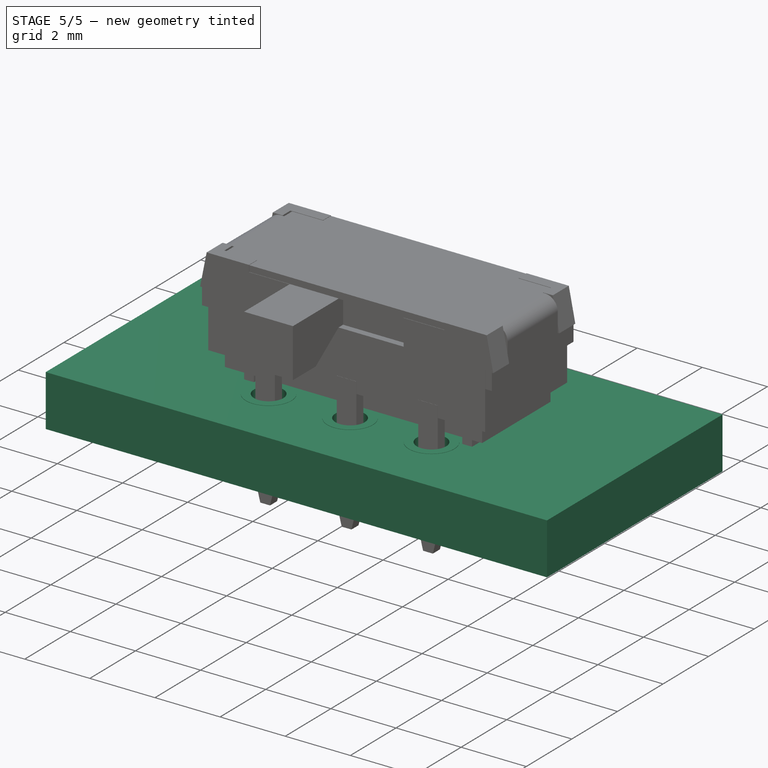
[diagram: stage 5 of 5 — iso view after this stage's code; geometry added in this stage tinted green]
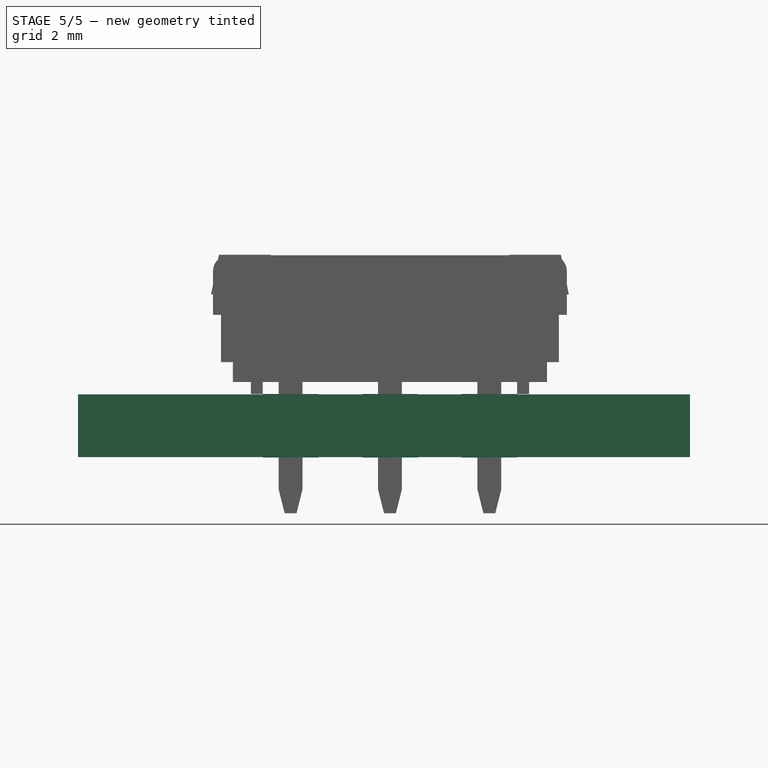
[diagram: stage 5 of 5 — front view after this stage's code; geometry added in this stage tinted green]
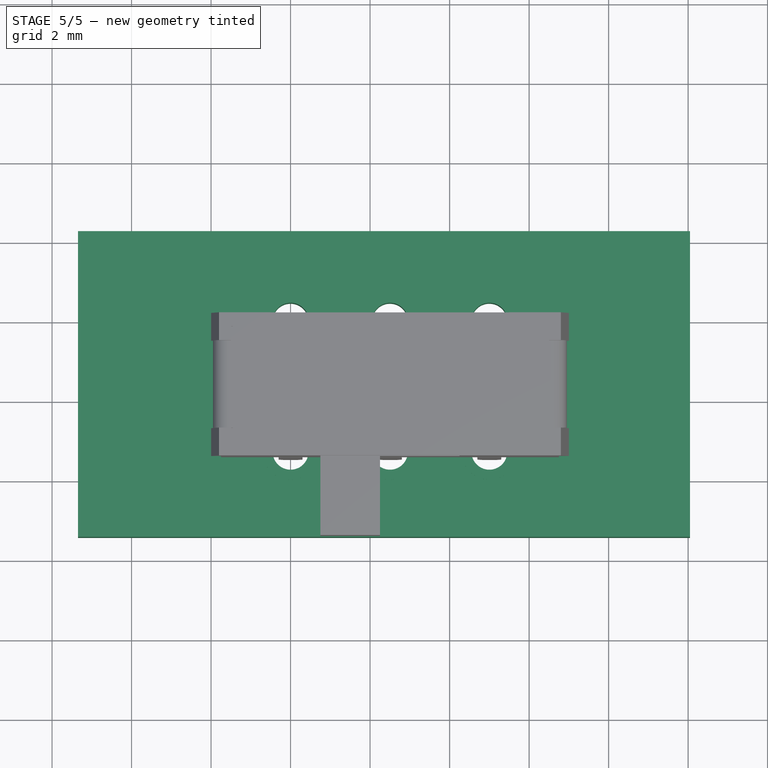
[diagram: stage 5 of 5 — top view after this stage's code; geometry added in this stage tinted green]
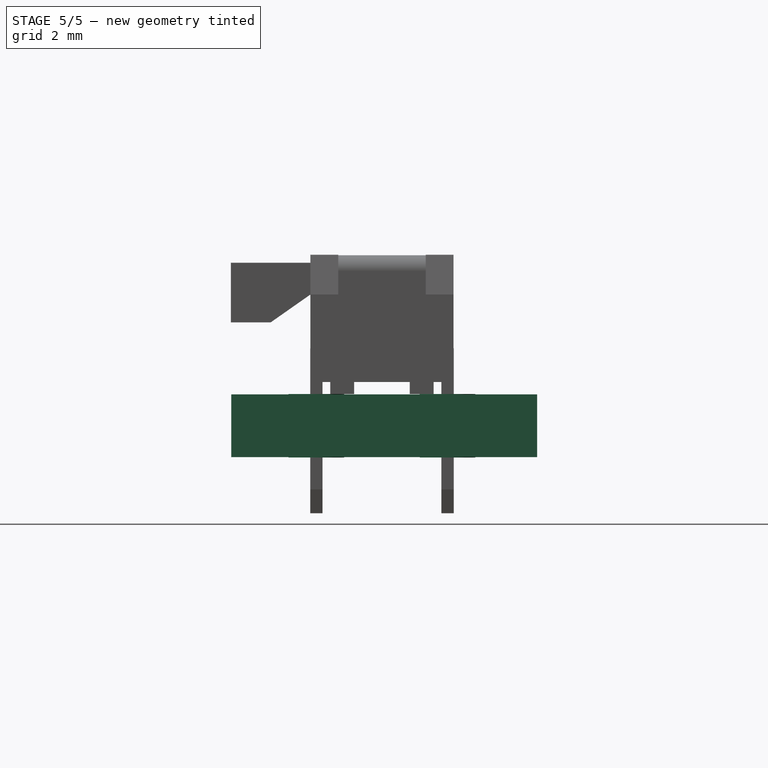
[diagram: stage 5 of 5 — right view after this stage's code; geometry added in this stage tinted green]
FEATURE [Part::FeaturePython] Filk_lines  label="FrontSilk"  # a2plus imported part (geometry in sourceFile) (typed FeaturePython)
  fixedPosition = true
FEATURE [Part::FeaturePython] TopPads  # a2plus imported part (geometry in sourceFile) (typed FeaturePython)
  fixedPosition = true
FEATURE [Part::FeaturePython] BotPads  # a2plus imported part (geometry in sourceFile) (typed FeaturePython)
  fixedPosition = true
FEATURE [Part::FeaturePython] THPs  label="PTHs"  # a2plus imported part (geometry in sourceFile) (typed FeaturePython)
  fixedPosition = true
FEATURE [Part::FeaturePython] newPCB  label="Pcb"  # a2plus imported part (geometry in sourceFile) (typed FeaturePython)
  fixedPosition = true
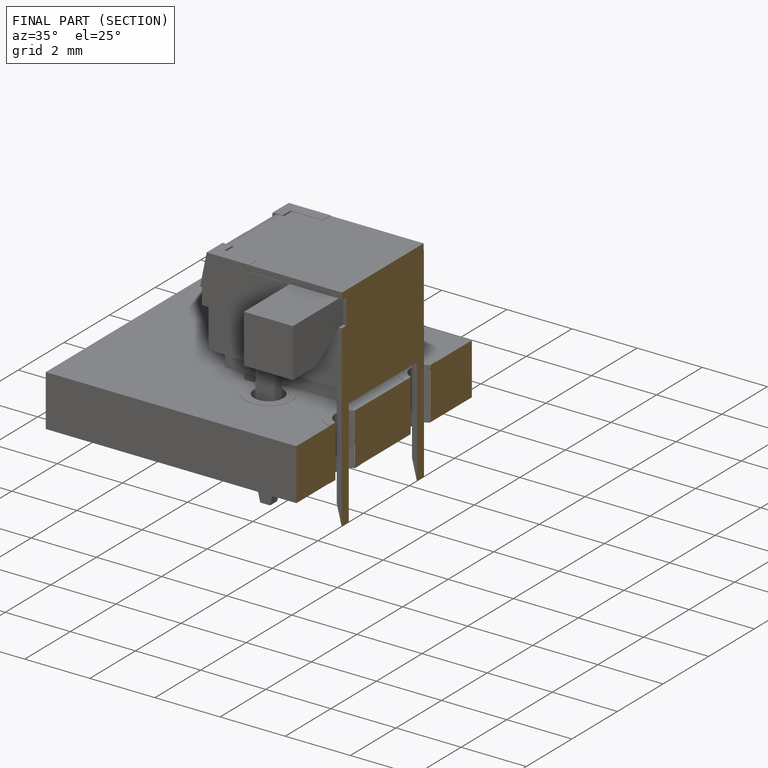
[diagram: finished part — half-section view (interior)]
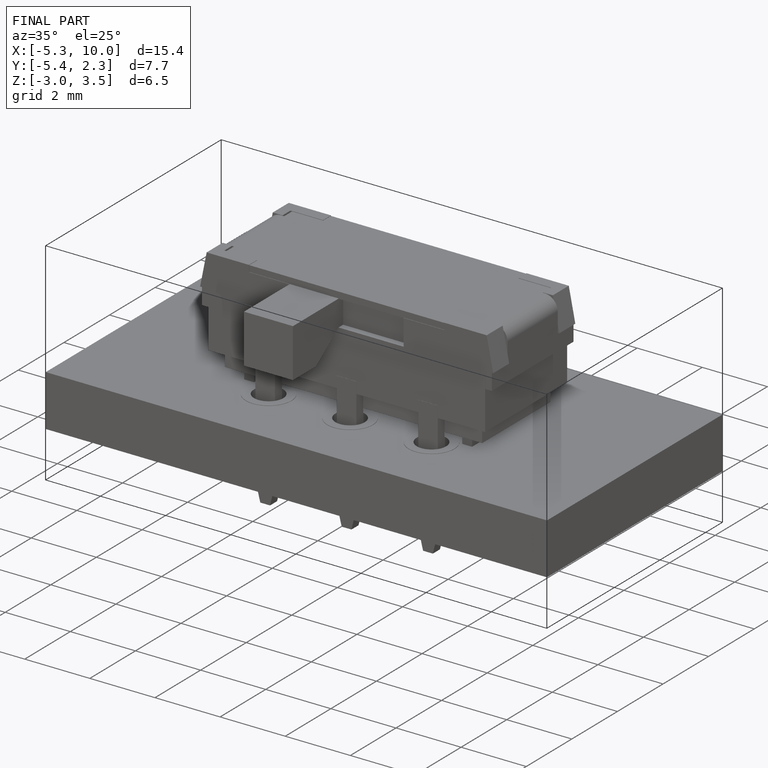
[diagram: finished part — iso view with bounding-box wireframe]
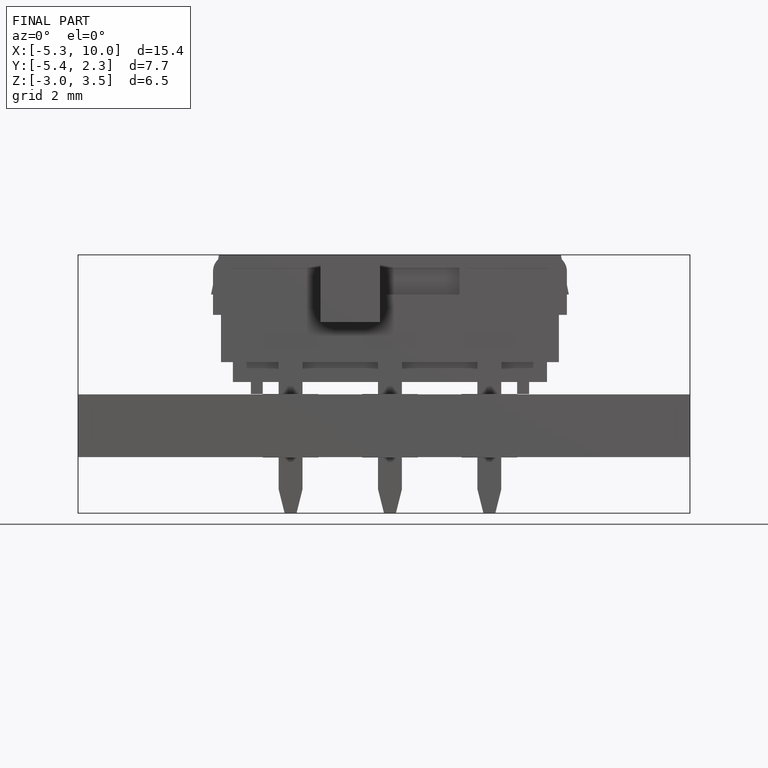
[diagram: finished part — front view with bounding-box wireframe]
